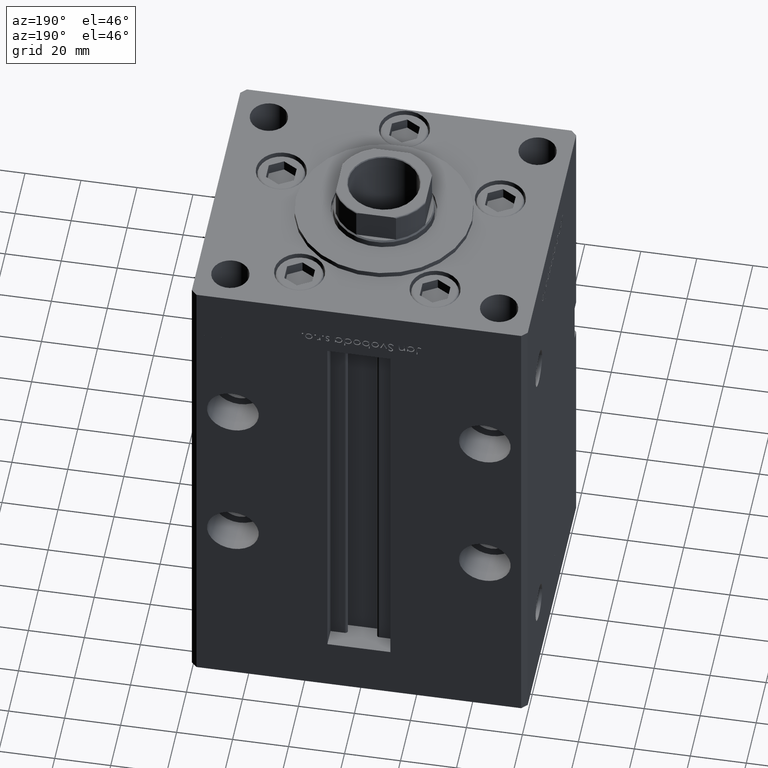
[diagram: clean part render]
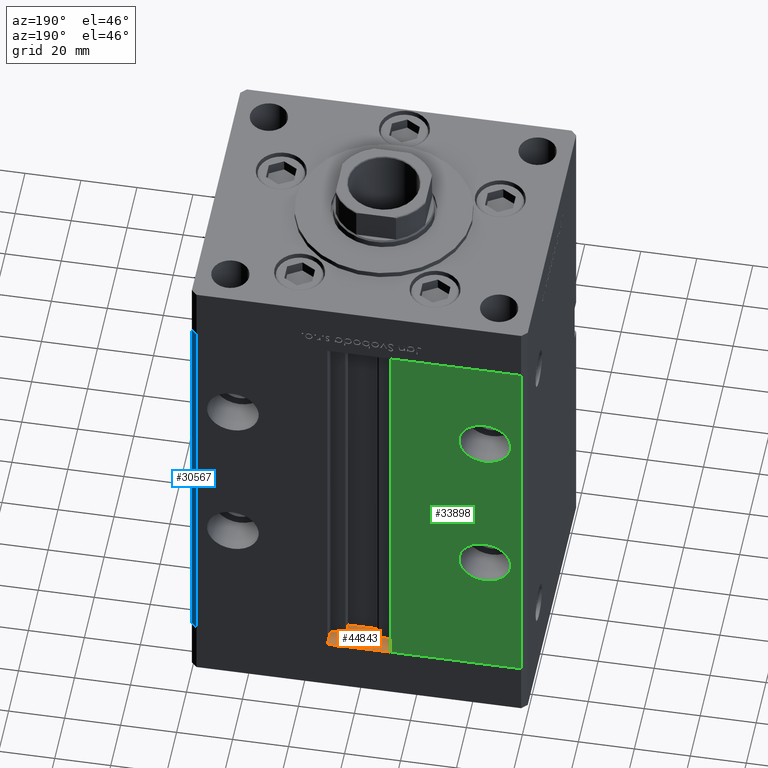
[diagram: same view with three faces highlighted in distinct colors, each labeled with its STEP entity id]
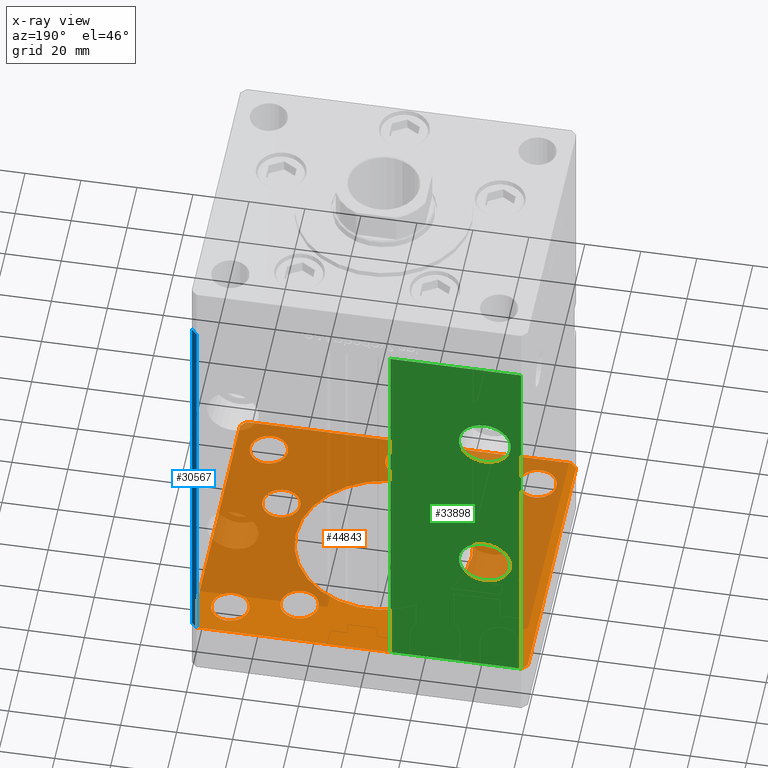
[diagram: x-ray of the same camera — body ghosted, the three highlighted faces saturated]
A machine part, auxiliary view with three faces highlighted in distinct colors.
The next image is the same camera in x-ray (body ghosted, the three faces saturated) — at least one of them is partly hidden behind the body in this view.
Their STEP definitions:

[orange] entity #44843 — the highlighted planar face has unit normal (0, 0, -1).
#113 = AXIS2_PLACEMENT_3D ( 'NONE', #4527, #45582, #9354 ) ;
#206 = CARTESIAN_POINT ( 'NONE',  ( 39.12657522565562829, -13.83333333333332860, -20.00000000000000000 ) ) ;
#509 = CARTESIAN_POINT ( 'NONE',  ( 48.00000000000000000, -38.99999999999999289, -20.00000000000000000 ) ) ;
#714 = DIRECTION ( 'NONE',  ( -1.000000000000000000, 0.000000000000000000, 0.000000000000000000 ) ) ;
#767 = CIRCLE ( 'NONE', #30714, 6.749999999999999112 ) ;
#917 = AXIS2_PLACEMENT_3D ( 'NONE', #206, #40977, #32646 ) ;
#1074 = VERTEX_POINT ( 'NONE', #9770 ) ;
#1345 = VERTEX_POINT ( 'NONE', #18262 ) ;
#2317 = CIRCLE ( 'NONE', #39153, 6.749999999999999112 ) ;
#2570 = CARTESIAN_POINT ( 'NONE',  ( 57.99999999999993605, 51.00000000000000711, -20.00000000000000000 ) ) ;
#2639 = VERTEX_POINT ( 'NONE', #17955 ) ;
#2806 = DIRECTION ( 'NONE',  ( -0.7071067811865487940, 0.7071067811865463515, 0.000000000000000000 ) ) ;
#2968 = FACE_BOUND ( 'NONE', #4332, .T. ) ;
#3303 = EDGE_LOOP ( 'NONE', ( #33275, #30427 ) ) ;
#3325 = CIRCLE ( 'NONE', #5059, 6.749999999999999112 ) ;
#3647 = VERTEX_POINT ( 'NONE', #16887 ) ;
#3874 = DIRECTION ( 'NONE',  ( 0.000000000000000000, -0.000000000000000000, -1.000000000000000000 ) ) ;
#3994 = EDGE_CURVE ( 'NONE', #8929, #12652, #7865, .T. ) ;
#4182 = EDGE_CURVE ( 'NONE', #47533, #34388, #30133, .T. ) ;
#4311 = CARTESIAN_POINT ( 'NONE',  ( -41.25000000000000000, -39.00000000000000000, -20.00000000000000000 ) ) ;
#4332 = EDGE_LOOP ( 'NONE', ( #49864, #34961 ) ) ;
#4366 = CARTESIAN_POINT ( 'NONE',  ( -24.19288941894912170, 33.71875000000000000, -20.00000000000000000 ) ) ;
#4415 = DIRECTION ( 'NONE',  ( 1.000000000000000000, 0.000000000000000000, 0.000000000000000000 ) ) ;
#4506 = CARTESIAN_POINT ( 'NONE',  ( 48.00000000000000000, 38.99999999999999289, -20.00000000000000000 ) ) ;
#4527 = CARTESIAN_POINT ( 'NONE',  ( -24.19288941894912170, 33.71875000000000000, -20.00000000000000000 ) ) ;
#4571 = DIRECTION ( 'NONE',  ( 0.000000000000000000, -0.000000000000000000, -1.000000000000000000 ) ) ;
#4684 = DIRECTION ( 'NONE',  ( 0.000000000000000000, -0.000000000000000000, -1.000000000000000000 ) ) ;
#4724 = DIRECTION ( 'NONE',  ( 1.000000000000000000, 0.000000000000000000, 0.000000000000000000 ) ) ;
#4732 = EDGE_CURVE ( 'NONE', #23922, #21215, #49593, .T. ) ;
#4733 = CARTESIAN_POINT ( 'NONE',  ( 59.99999999999994316, 49.00000000000000000, -20.00000000000000000 ) ) ;
#4773 = DIRECTION ( 'NONE',  ( 0.000000000000000000, -1.000000000000000000, 0.000000000000000000 ) ) ;
#4967 = VERTEX_POINT ( 'NONE', #11434 ) ;
#5059 = AXIS2_PLACEMENT_3D ( 'NONE', #37358, #8938, #12692 ) ;
#5108 = EDGE_CURVE ( 'NONE', #21215, #28339, #32601, .T. ) ;
#5632 = AXIS2_PLACEMENT_3D ( 'NONE', #36111, #52781, #4724 ) ;
#5889 = AXIS2_PLACEMENT_3D ( 'NONE', #29240, #4571, #49662 ) ;
#6088 = EDGE_CURVE ( 'NONE', #40906, #48078, #32654, .T. ) ;
#6653 = CIRCLE ( 'NONE', #19477, 31.50000000000000000 ) ;
#7056 = LINE ( 'NONE', #19116, #9046 ) ;
#7826 = EDGE_LOOP ( 'NONE', ( #12854, #9784 ) ) ;
#7865 = CIRCLE ( 'NONE', #21580, 6.749999999999999112 ) ;
#8017 = CARTESIAN_POINT ( 'NONE',  ( 24.19288941894911460, 33.71875000000000711, -20.00000000000000000 ) ) ;
#8165 = CARTESIAN_POINT ( 'NONE',  ( 24.19288941894911460, 33.71875000000000711, -20.00000000000000000 ) ) ;
#8669 = DIRECTION ( 'NONE',  ( -7.080503983578803823E-16, 1.000000000000000000, 0.000000000000000000 ) ) ;
#8712 = CARTESIAN_POINT ( 'NONE',  ( 5.082284216461515748E-15, -41.50000000000000000, -20.00000000000000000 ) ) ;
#8929 = VERTEX_POINT ( 'NONE', #46738 ) ;
#8938 = DIRECTION ( 'NONE',  ( 0.000000000000000000, -0.000000000000000000, -1.000000000000000000 ) ) ;
#9002 = DIRECTION ( 'NONE',  ( 0.7071067811865474617, 0.7071067811865474617, 0.000000000000000000 ) ) ;
#9046 = VECTOR ( 'NONE', #52675, 1000.000000000000114 ) ;
#9308 = CIRCLE ( 'NONE', #16153, 6.749999999999999112 ) ;
#9354 = DIRECTION ( 'NONE',  ( 1.000000000000000000, 0.000000000000000000, 0.000000000000000000 ) ) ;
#9698 = EDGE_CURVE ( 'NONE', #3647, #39657, #49094, .T. ) ;
#9770 = CARTESIAN_POINT ( 'NONE',  ( -57.99999999999999289, 50.99999999999997868, -20.00000000000000000 ) ) ;
#9784 = ORIENTED_EDGE ( 'NONE', *, *, #27798, .F. ) ;
#10663 = EDGE_CURVE ( 'NONE', #12652, #8929, #12258, .T. ) ;
#11092 = DIRECTION ( 'NONE',  ( 0.000000000000000000, 0.000000000000000000, 1.000000000000000000 ) ) ;
#11434 = CARTESIAN_POINT ( 'NONE',  ( -31.50000000000000000, 3.857637417314161900E-15, -20.00000000000000000 ) ) ;
#11825 = PLANE ( 'NONE',  #36664 ) ;
#11879 = EDGE_CURVE ( 'NONE', #33465, #41792, #40560, .T. ) ;
#11966 = EDGE_LOOP ( 'NONE', ( #13756, #31860 ) ) ;
#12258 = CIRCLE ( 'NONE', #27696, 6.749999999999999112 ) ;
#12358 = VERTEX_POINT ( 'NONE', #34663 ) ;
#12652 = VERTEX_POINT ( 'NONE', #35130 ) ;
#12674 = AXIS2_PLACEMENT_3D ( 'NONE', #8165, #3874, #33088 ) ;
#12685 = DIRECTION ( 'NONE',  ( -1.000000000000000000, 0.000000000000000000, 0.000000000000000000 ) ) ;
#12692 = DIRECTION ( 'NONE',  ( 1.000000000000000000, 0.000000000000000000, 0.000000000000000000 ) ) ;
#12791 = DIRECTION ( 'NONE',  ( -0.000000000000000000, -0.000000000000000000, -1.000000000000000000 ) ) ;
#12800 = CARTESIAN_POINT ( 'NONE',  ( -6.749999999999993783, -41.50000000000000000, -20.00000000000000000 ) ) ;
#12854 = ORIENTED_EDGE ( 'NONE', *, *, #35529, .F. ) ;
#12938 = CIRCLE ( 'NONE', #113, 6.749999999999999112 ) ;
#13317 = CARTESIAN_POINT ( 'NONE',  ( 48.00000000000000000, -38.99999999999999289, -20.00000000000000000 ) ) ;
#13756 = ORIENTED_EDGE ( 'NONE', *, *, #26577, .F. ) ;
#14206 = CARTESIAN_POINT ( 'NONE',  ( -48.00000000000000000, 39.00000000000000000, -20.00000000000000000 ) ) ;
#14773 = AXIS2_PLACEMENT_3D ( 'NONE', #37566, #41595, #21739 ) ;
#14876 = VERTEX_POINT ( 'NONE', #49277 ) ;
#15441 = CARTESIAN_POINT ( 'NONE',  ( -54.75000000000000000, -39.00000000000000000, -20.00000000000000000 ) ) ;
#15688 = EDGE_CURVE ( 'NONE', #12358, #2639, #26990, .T. ) ;
#15720 = DIRECTION ( 'NONE',  ( 1.000000000000000000, 0.000000000000000000, 0.000000000000000000 ) ) ;
#15722 = CARTESIAN_POINT ( 'NONE',  ( 54.75000000000000000, -38.99999999999999289, -20.00000000000000000 ) ) ;
#15987 = EDGE_CURVE ( 'NONE', #53034, #40736, #48169, .T. ) ;
#16153 = AXIS2_PLACEMENT_3D ( 'NONE', #4506, #41260, #20596 ) ;
#16590 = DIRECTION ( 'NONE',  ( -0.000000000000000000, -0.000000000000000000, -1.000000000000000000 ) ) ;
#16887 = CARTESIAN_POINT ( 'NONE',  ( 6.750000000000004441, -41.50000000000000000, -20.00000000000000000 ) ) ;
#17276 = EDGE_CURVE ( 'NONE', #1074, #39306, #7056, .T. ) ;
#17534 = CARTESIAN_POINT ( 'NONE',  ( 31.50000000000000000, 0.000000000000000000, -20.00000000000000000 ) ) ;
#17955 = CARTESIAN_POINT ( 'NONE',  ( 17.44288941894911460, 33.71875000000000711, -20.00000000000000000 ) ) ;
#18016 = AXIS2_PLACEMENT_3D ( 'NONE', #22173, #22433, #38521 ) ;
#18262 = CARTESIAN_POINT ( 'NONE',  ( -60.00000000000000000, -49.00000000000000000, -20.00000000000000000 ) ) ;
#18503 = EDGE_LOOP ( 'NONE', ( #30483, #50798, #49157, #27988, #37436, #52698, #47415, #49215 ) ) ;
#18903 = DIRECTION ( 'NONE',  ( -0.000000000000000000, -0.000000000000000000, -1.000000000000000000 ) ) ;
#19116 = CARTESIAN_POINT ( 'NONE',  ( -57.99999999999999289, 50.99999999999997868, -20.00000000000000000 ) ) ;
#19320 = FACE_BOUND ( 'NONE', #3303, .T. ) ;
#19477 = AXIS2_PLACEMENT_3D ( 'NONE', #31885, #27346, #45515 ) ;
#19879 = ORIENTED_EDGE ( 'NONE', *, *, #31040, .F. ) ;
#20146 = LINE ( 'NONE', #52904, #29018 ) ;
#20596 = DIRECTION ( 'NONE',  ( 1.000000000000000000, 0.000000000000000000, 0.000000000000000000 ) ) ;
#21215 = VERTEX_POINT ( 'NONE', #46602 ) ;
#21329 = CIRCLE ( 'NONE', #5889, 6.749999999999999112 ) ;
#21408 = ORIENTED_EDGE ( 'NONE', *, *, #6088, .F. ) ;
#21495 = ORIENTED_EDGE ( 'NONE', *, *, #3994, .T. ) ;
#21570 = CARTESIAN_POINT ( 'NONE',  ( -32.37657522565562829, -13.83333333333333925, -20.00000000000000000 ) ) ;
#21580 = AXIS2_PLACEMENT_3D ( 'NONE', #42822, #11092, #29951 ) ;
#21739 = DIRECTION ( 'NONE',  ( 1.000000000000000000, 0.000000000000000000, 0.000000000000000000 ) ) ;
#21921 = EDGE_CURVE ( 'NONE', #39306, #1345, #46612, .T. ) ;
#22173 = CARTESIAN_POINT ( 'NONE',  ( 0.000000000000000000, 0.000000000000000000, -20.00000000000000000 ) ) ;
#22277 = CIRCLE ( 'NONE', #39374, 6.749999999999999112 ) ;
#22433 = DIRECTION ( 'NONE',  ( 0.000000000000000000, -0.000000000000000000, -1.000000000000000000 ) ) ;
#22531 = DIRECTION ( 'NONE',  ( 1.000000000000000000, 0.000000000000000000, 0.000000000000000000 ) ) ;
#22693 = EDGE_CURVE ( 'NONE', #26607, #23840, #45047, .T. ) ;
#22724 = ORIENTED_EDGE ( 'NONE', *, *, #10663, .T. ) ;
#22802 = ORIENTED_EDGE ( 'NONE', *, *, #51555, .F. ) ;
#23365 = FACE_BOUND ( 'NONE', #7826, .T. ) ;
#23594 = DIRECTION ( 'NONE',  ( 0.000000000000000000, -0.000000000000000000, -1.000000000000000000 ) ) ;
#23634 = EDGE_CURVE ( 'NONE', #48078, #40906, #50227, .T. ) ;
#23811 = CARTESIAN_POINT ( 'NONE',  ( -30.94288941894911815, 33.71875000000000000, -20.00000000000000000 ) ) ;
#23840 = VERTEX_POINT ( 'NONE', #21570 ) ;
#23922 = VERTEX_POINT ( 'NONE', #38440 ) ;
#24392 = DIRECTION ( 'NONE',  ( 1.000000000000000000, 0.000000000000000000, 0.000000000000000000 ) ) ;
#24776 = VECTOR ( 'NONE', #8669, 1000.000000000000000 ) ;
#25031 = LINE ( 'NONE', #44898, #24776 ) ;
#25155 = CARTESIAN_POINT ( 'NONE',  ( -57.99999999999997868, -51.00000000000001421, -20.00000000000000000 ) ) ;
#25825 = CARTESIAN_POINT ( 'NONE',  ( -48.00000000000000000, -39.00000000000000000, -20.00000000000000000 ) ) ;
#26052 = ORIENTED_EDGE ( 'NONE', *, *, #22693, .F. ) ;
#26188 = VECTOR ( 'NONE', #4773, 1000.000000000000000 ) ;
#26577 = EDGE_CURVE ( 'NONE', #41792, #33465, #2317, .T. ) ;
#26607 = VERTEX_POINT ( 'NONE', #26969 ) ;
#26969 = CARTESIAN_POINT ( 'NONE',  ( -45.87657522565562829, -13.83333333333333925, -20.00000000000000000 ) ) ;
#26990 = CIRCLE ( 'NONE', #52731, 6.749999999999999112 ) ;
#27067 = AXIS2_PLACEMENT_3D ( 'NONE', #47097, #18903, #29467 ) ;
#27209 = ORIENTED_EDGE ( 'NONE', *, *, #15688, .F. ) ;
#27346 = DIRECTION ( 'NONE',  ( 0.000000000000000000, -0.000000000000000000, -1.000000000000000000 ) ) ;
#27443 = CIRCLE ( 'NONE', #18016, 31.50000000000000000 ) ;
#27530 = ORIENTED_EDGE ( 'NONE', *, *, #28115, .F. ) ;
#27696 = AXIS2_PLACEMENT_3D ( 'NONE', #14206, #38615, #22531 ) ;
#27798 = EDGE_CURVE ( 'NONE', #4967, #48997, #6653, .T. ) ;
#27988 = ORIENTED_EDGE ( 'NONE', *, *, #31280, .F. ) ;
#28115 = EDGE_CURVE ( 'NONE', #2639, #12358, #41821, .T. ) ;
#28180 = DIRECTION ( 'NONE',  ( 1.000000000000000000, 0.000000000000000000, 0.000000000000000000 ) ) ;
#28339 = VERTEX_POINT ( 'NONE', #50281 ) ;
#28415 = CARTESIAN_POINT ( 'NONE',  ( 41.25000000000000000, -38.99999999999999289, -20.00000000000000000 ) ) ;
#28440 = FACE_BOUND ( 'NONE', #37742, .T. ) ;
#29018 = VECTOR ( 'NONE', #44302, 1000.000000000000000 ) ;
#29041 = DIRECTION ( 'NONE',  ( -0.000000000000000000, -0.000000000000000000, -1.000000000000000000 ) ) ;
#29240 = CARTESIAN_POINT ( 'NONE',  ( 39.12657522565562829, -13.83333333333332860, -20.00000000000000000 ) ) ;
#29451 = AXIS2_PLACEMENT_3D ( 'NONE', #509, #16590, #32944 ) ;
#29467 = DIRECTION ( 'NONE',  ( -1.000000000000000000, 0.000000000000000000, 0.000000000000000000 ) ) ;
#29951 = DIRECTION ( 'NONE',  ( 1.000000000000000000, 0.000000000000000000, 0.000000000000000000 ) ) ;
#30133 = CIRCLE ( 'NONE', #36994, 6.749999999999999112 ) ;
#30427 = ORIENTED_EDGE ( 'NONE', *, *, #31770, .T. ) ;
#30483 = ORIENTED_EDGE ( 'NONE', *, *, #41367, .F. ) ;
#30683 = VERTEX_POINT ( 'NONE', #43958 ) ;
#30714 = AXIS2_PLACEMENT_3D ( 'NONE', #36107, #31808, #15720 ) ;
#30731 = EDGE_CURVE ( 'NONE', #44592, #47463, #9308, .T. ) ;
#31040 = EDGE_CURVE ( 'NONE', #23840, #26607, #3325, .T. ) ;
#31280 = EDGE_CURVE ( 'NONE', #40736, #1074, #20146, .T. ) ;
#31770 = EDGE_CURVE ( 'NONE', #47463, #44592, #767, .T. ) ;
#31808 = DIRECTION ( 'NONE',  ( 0.000000000000000000, 0.000000000000000000, 1.000000000000000000 ) ) ;
#31860 = ORIENTED_EDGE ( 'NONE', *, *, #11879, .F. ) ;
#31885 = CARTESIAN_POINT ( 'NONE',  ( 0.000000000000000000, 0.000000000000000000, -20.00000000000000000 ) ) ;
#31919 = DIRECTION ( 'NONE',  ( -0.000000000000000000, 0.000000000000000000, 1.000000000000000000 ) ) ;
#32183 = CARTESIAN_POINT ( 'NONE',  ( -60.00000000000000000, 48.99999999999995737, -20.00000000000000000 ) ) ;
#32601 = LINE ( 'NONE', #41197, #41217 ) ;
#32646 = DIRECTION ( 'NONE',  ( 1.000000000000000000, 0.000000000000000000, 0.000000000000000000 ) ) ;
#32654 = CIRCLE ( 'NONE', #45518, 6.749999999999999112 ) ;
#32944 = DIRECTION ( 'NONE',  ( -1.000000000000000000, 0.000000000000000000, 0.000000000000000000 ) ) ;
#33088 = DIRECTION ( 'NONE',  ( 1.000000000000000000, 0.000000000000000000, 0.000000000000000000 ) ) ;
#33275 = ORIENTED_EDGE ( 'NONE', *, *, #30731, .T. ) ;
#33465 = VERTEX_POINT ( 'NONE', #28415 ) ;
#33977 = DIRECTION ( 'NONE',  ( 1.000000000000000000, 1.196361017915039486E-16, 0.000000000000000000 ) ) ;
#34388 = VERTEX_POINT ( 'NONE', #23811 ) ;
#34663 = CARTESIAN_POINT ( 'NONE',  ( 30.94288941894911105, 33.71875000000000711, -20.00000000000000000 ) ) ;
#34961 = ORIENTED_EDGE ( 'NONE', *, *, #52191, .F. ) ;
#35130 = CARTESIAN_POINT ( 'NONE',  ( -41.25000000000000000, 39.00000000000000000, -20.00000000000000000 ) ) ;
#35523 = VECTOR ( 'NONE', #2806, 1000.000000000000000 ) ;
#35529 = EDGE_CURVE ( 'NONE', #48997, #4967, #27443, .T. ) ;
#35553 = CARTESIAN_POINT ( 'NONE',  ( -17.44288941894912170, 33.71875000000000000, -20.00000000000000000 ) ) ;
#35555 = EDGE_LOOP ( 'NONE', ( #19879, #26052 ) ) ;
#35682 = FACE_BOUND ( 'NONE', #11966, .T. ) ;
#35823 = CARTESIAN_POINT ( 'NONE',  ( 41.25000000000000000, 38.99999999999999289, -20.00000000000000000 ) ) ;
#35950 = FACE_BOUND ( 'NONE', #47398, .T. ) ;
#36107 = CARTESIAN_POINT ( 'NONE',  ( 48.00000000000000000, 38.99999999999999289, -20.00000000000000000 ) ) ;
#36111 = CARTESIAN_POINT ( 'NONE',  ( -39.12657522565562829, -13.83333333333333925, -20.00000000000000000 ) ) ;
#36216 = FACE_BOUND ( 'NONE', #44601, .T. ) ;
#36240 = LINE ( 'NONE', #46689, #51203 ) ;
#36664 = AXIS2_PLACEMENT_3D ( 'NONE', #52080, #31919, #28180 ) ;
#36994 = AXIS2_PLACEMENT_3D ( 'NONE', #4366, #37081, #40851 ) ;
#37081 = DIRECTION ( 'NONE',  ( 0.000000000000000000, -0.000000000000000000, -1.000000000000000000 ) ) ;
#37358 = CARTESIAN_POINT ( 'NONE',  ( -39.12657522565562829, -13.83333333333333925, -20.00000000000000000 ) ) ;
#37436 = ORIENTED_EDGE ( 'NONE', *, *, #15987, .F. ) ;
#37566 = CARTESIAN_POINT ( 'NONE',  ( 5.082284216461515748E-15, -41.50000000000000000, -20.00000000000000000 ) ) ;
#37742 = EDGE_LOOP ( 'NONE', ( #22724, #21495 ) ) ;
#38017 = EDGE_LOOP ( 'NONE', ( #49419, #21408 ) ) ;
#38440 = CARTESIAN_POINT ( 'NONE',  ( -57.99999999999997868, -51.00000000000001421, -20.00000000000000000 ) ) ;
#38521 = DIRECTION ( 'NONE',  ( 1.000000000000000000, 0.000000000000000000, 0.000000000000000000 ) ) ;
#38615 = DIRECTION ( 'NONE',  ( 0.000000000000000000, 0.000000000000000000, 1.000000000000000000 ) ) ;
#39153 = AXIS2_PLACEMENT_3D ( 'NONE', #13317, #12791, #714 ) ;
#39306 = VERTEX_POINT ( 'NONE', #32183 ) ;
#39374 = AXIS2_PLACEMENT_3D ( 'NONE', #8712, #4684, #4415 ) ;
#39657 = VERTEX_POINT ( 'NONE', #12800 ) ;
#39702 = FACE_BOUND ( 'NONE', #35555, .T. ) ;
#40560 = CIRCLE ( 'NONE', #29451, 6.749999999999999112 ) ;
#40736 = VERTEX_POINT ( 'NONE', #2570 ) ;
#40851 = DIRECTION ( 'NONE',  ( 1.000000000000000000, 0.000000000000000000, 0.000000000000000000 ) ) ;
#40906 = VERTEX_POINT ( 'NONE', #15441 ) ;
#40977 = DIRECTION ( 'NONE',  ( 0.000000000000000000, -0.000000000000000000, -1.000000000000000000 ) ) ;
#41197 = CARTESIAN_POINT ( 'NONE',  ( 58.00000000000000000, -51.00000000000000711, -20.00000000000000000 ) ) ;
#41217 = VECTOR ( 'NONE', #9002, 1000.000000000000114 ) ;
#41260 = DIRECTION ( 'NONE',  ( 0.000000000000000000, 0.000000000000000000, 1.000000000000000000 ) ) ;
#41367 = EDGE_CURVE ( 'NONE', #1345, #23922, #36240, .T. ) ;
#41595 = DIRECTION ( 'NONE',  ( 0.000000000000000000, -0.000000000000000000, -1.000000000000000000 ) ) ;
#41792 = VERTEX_POINT ( 'NONE', #15722 ) ;
#41821 = CIRCLE ( 'NONE', #12674, 6.749999999999999112 ) ;
#42572 = CARTESIAN_POINT ( 'NONE',  ( -60.00000000000000000, 48.99999999999995737, -20.00000000000000000 ) ) ;
#42822 = CARTESIAN_POINT ( 'NONE',  ( -48.00000000000000000, 39.00000000000000000, -20.00000000000000000 ) ) ;
#43958 = CARTESIAN_POINT ( 'NONE',  ( 32.37657522565562829, -13.83333333333332860, -20.00000000000000000 ) ) ;
#44302 = DIRECTION ( 'NONE',  ( -1.000000000000000000, -2.392722035830079958E-16, 0.000000000000000000 ) ) ;
#44354 = CARTESIAN_POINT ( 'NONE',  ( 54.75000000000000000, 38.99999999999999289, -20.00000000000000000 ) ) ;
#44592 = VERTEX_POINT ( 'NONE', #44354 ) ;
#44601 = EDGE_LOOP ( 'NONE', ( #45768, #46283 ) ) ;
#44819 = FACE_OUTER_BOUND ( 'NONE', #18503, .T. ) ;
#44843 = ADVANCED_FACE ( 'NONE', ( #23365, #39702, #36216, #35950, #52350, #2968, #19320, #28440, #44819, #35682, #48600 ), #11825, .F. ) ;
#44898 = CARTESIAN_POINT ( 'NONE',  ( 60.00000000000001421, -48.99999999999999289, -20.00000000000000000 ) ) ;
#45047 = CIRCLE ( 'NONE', #5632, 6.749999999999999112 ) ;
#45515 = DIRECTION ( 'NONE',  ( 1.000000000000000000, 0.000000000000000000, 0.000000000000000000 ) ) ;
#45518 = AXIS2_PLACEMENT_3D ( 'NONE', #25825, #29041, #12685 ) ;
#45582 = DIRECTION ( 'NONE',  ( 0.000000000000000000, -0.000000000000000000, -1.000000000000000000 ) ) ;
#45622 = EDGE_CURVE ( 'NONE', #30683, #14876, #21329, .T. ) ;
#45768 = ORIENTED_EDGE ( 'NONE', *, *, #9698, .F. ) ;
#46283 = ORIENTED_EDGE ( 'NONE', *, *, #49820, .F. ) ;
#46602 = CARTESIAN_POINT ( 'NONE',  ( 58.00000000000000000, -51.00000000000000711, -20.00000000000000000 ) ) ;
#46612 = LINE ( 'NONE', #42572, #26188 ) ;
#46689 = CARTESIAN_POINT ( 'NONE',  ( -60.00000000000000000, -49.00000000000000000, -20.00000000000000000 ) ) ;
#46738 = CARTESIAN_POINT ( 'NONE',  ( -54.75000000000000000, 39.00000000000000000, -20.00000000000000000 ) ) ;
#46819 = EDGE_LOOP ( 'NONE', ( #27209, #27530 ) ) ;
#47097 = CARTESIAN_POINT ( 'NONE',  ( -48.00000000000000000, -39.00000000000000000, -20.00000000000000000 ) ) ;
#47327 = VECTOR ( 'NONE', #33977, 1000.000000000000000 ) ;
#47398 = EDGE_LOOP ( 'NONE', ( #22802, #48850 ) ) ;
#47415 = ORIENTED_EDGE ( 'NONE', *, *, #5108, .F. ) ;
#47463 = VERTEX_POINT ( 'NONE', #35823 ) ;
#47533 = VERTEX_POINT ( 'NONE', #35553 ) ;
#47814 = EDGE_CURVE ( 'NONE', #28339, #53034, #25031, .T. ) ;
#48078 = VERTEX_POINT ( 'NONE', #4311 ) ;
#48169 = LINE ( 'NONE', #50667, #35523 ) ;
#48600 = FACE_BOUND ( 'NONE', #38017, .T. ) ;
#48850 = ORIENTED_EDGE ( 'NONE', *, *, #45622, .F. ) ;
#48997 = VERTEX_POINT ( 'NONE', #17534 ) ;
#49094 = CIRCLE ( 'NONE', #14773, 6.749999999999999112 ) ;
#49157 = ORIENTED_EDGE ( 'NONE', *, *, #17276, .F. ) ;
#49215 = ORIENTED_EDGE ( 'NONE', *, *, #4732, .F. ) ;
#49277 = CARTESIAN_POINT ( 'NONE',  ( 45.87657522565562829, -13.83333333333332860, -20.00000000000000000 ) ) ;
#49419 = ORIENTED_EDGE ( 'NONE', *, *, #23634, .F. ) ;
#49593 = LINE ( 'NONE', #25155, #47327 ) ;
#49662 = DIRECTION ( 'NONE',  ( 1.000000000000000000, 0.000000000000000000, 0.000000000000000000 ) ) ;
#49675 = DIRECTION ( 'NONE',  ( 0.7071067811865474617, -0.7071067811865474617, 0.000000000000000000 ) ) ;
#49820 = EDGE_CURVE ( 'NONE', #39657, #3647, #22277, .T. ) ;
#49864 = ORIENTED_EDGE ( 'NONE', *, *, #4182, .F. ) ;
#50227 = CIRCLE ( 'NONE', #27067, 6.749999999999999112 ) ;
#50281 = CARTESIAN_POINT ( 'NONE',  ( 60.00000000000001421, -48.99999999999999289, -20.00000000000000000 ) ) ;
#50667 = CARTESIAN_POINT ( 'NONE',  ( 59.99999999999994316, 49.00000000000000000, -20.00000000000000000 ) ) ;
#50798 = ORIENTED_EDGE ( 'NONE', *, *, #21921, .F. ) ;
#51203 = VECTOR ( 'NONE', #49675, 1000.000000000000114 ) ;
#51464 = CIRCLE ( 'NONE', #917, 6.749999999999999112 ) ;
#51555 = EDGE_CURVE ( 'NONE', #14876, #30683, #51464, .T. ) ;
#52080 = CARTESIAN_POINT ( 'NONE',  ( 0.000000000000000000, 0.000000000000000000, -20.00000000000000000 ) ) ;
#52191 = EDGE_CURVE ( 'NONE', #34388, #47533, #12938, .T. ) ;
#52350 = FACE_BOUND ( 'NONE', #46819, .T. ) ;
#52675 = DIRECTION ( 'NONE',  ( -0.7071067811865451302, -0.7071067811865500152, 0.000000000000000000 ) ) ;
#52698 = ORIENTED_EDGE ( 'NONE', *, *, #47814, .F. ) ;
#52731 = AXIS2_PLACEMENT_3D ( 'NONE', #8017, #23594, #24392 ) ;
#52781 = DIRECTION ( 'NONE',  ( 0.000000000000000000, -0.000000000000000000, -1.000000000000000000 ) ) ;
#52904 = CARTESIAN_POINT ( 'NONE',  ( 57.99999999999993605, 51.00000000000000711, -20.00000000000000000 ) ) ;
#53034 = VERTEX_POINT ( 'NONE', #4733 ) ;

[blue] entity #30567 — the highlighted planar face has unit normal (0.7071, 0.7071, 0).
#715 = VECTOR ( 'NONE', #18859, 1000.000000000000114 ) ;
#2996 = VERTEX_POINT ( 'NONE', #50553 ) ;
#3574 = VECTOR ( 'NONE', #4446, 1000.000000000000114 ) ;
#4446 = DIRECTION ( 'NONE',  ( 0.7071067811865500152, -0.7071067811865451302, 0.000000000000000000 ) ) ;
#6736 = AXIS2_PLACEMENT_3D ( 'NONE', #17954, #39391, #42378 ) ;
#6796 = EDGE_CURVE ( 'NONE', #2996, #36367, #24838, .T. ) ;
#9792 = ORIENTED_EDGE ( 'NONE', *, *, #44472, .F. ) ;
#10383 = ORIENTED_EDGE ( 'NONE', *, *, #18276, .F. ) ;
#10698 = PLANE ( 'NONE',  #6736 ) ;
#14140 = EDGE_LOOP ( 'NONE', ( #9792, #10383, #22918, #38357 ) ) ;
#17954 = CARTESIAN_POINT ( 'NONE',  ( 57.99999999999999289, 51.00000000000000711, 148.5000000000000000 ) ) ;
#18276 = EDGE_CURVE ( 'NONE', #2996, #46034, #24291, .T. ) ;
#18859 = DIRECTION ( 'NONE',  ( 0.7071067811865500152, -0.7071067811865451302, 0.000000000000000000 ) ) ;
#22106 = LINE ( 'NONE', #38716, #715 ) ;
#22918 = ORIENTED_EDGE ( 'NONE', *, *, #6796, .T. ) ;
#23047 = FACE_OUTER_BOUND ( 'NONE', #14140, .T. ) ;
#23945 = VERTEX_POINT ( 'NONE', #50285 ) ;
#24291 = LINE ( 'NONE', #40372, #51907 ) ;
#24838 = LINE ( 'NONE', #44967, #3574 ) ;
#30567 = ADVANCED_FACE ( 'NONE', ( #23047 ), #10698, .T. ) ;
#36367 = VERTEX_POINT ( 'NONE', #40393 ) ;
#38357 = ORIENTED_EDGE ( 'NONE', *, *, #46177, .T. ) ;
#38716 = CARTESIAN_POINT ( 'NONE',  ( 57.99999999999999289, 51.00000000000000711, 0.000000000000000000 ) ) ;
#39391 = DIRECTION ( 'NONE',  ( 0.7071067811865451302, 0.7071067811865499042, -0.000000000000000000 ) ) ;
#40372 = CARTESIAN_POINT ( 'NONE',  ( 57.99999999999999289, 51.00000000000000711, 148.5000000000000000 ) ) ;
#40393 = CARTESIAN_POINT ( 'NONE',  ( 60.00000000000001421, 49.00000000000000000, 148.5000000000000000 ) ) ;
#42378 = DIRECTION ( 'NONE',  ( -0.7071067811865499042, 0.7071067811865451302, 0.000000000000000000 ) ) ;
#43571 = VECTOR ( 'NONE', #47187, 1000.000000000000000 ) ;
#43676 = CARTESIAN_POINT ( 'NONE',  ( 60.00000000000001421, 49.00000000000000000, 148.5000000000000000 ) ) ;
#44472 = EDGE_CURVE ( 'NONE', #46034, #23945, #22106, .T. ) ;
#44967 = CARTESIAN_POINT ( 'NONE',  ( 57.99999999999999289, 51.00000000000000711, 148.5000000000000000 ) ) ;
#46034 = VERTEX_POINT ( 'NONE', #52768 ) ;
#46177 = EDGE_CURVE ( 'NONE', #36367, #23945, #51743, .T. ) ;
#47187 = DIRECTION ( 'NONE',  ( -0.000000000000000000, -0.000000000000000000, -1.000000000000000000 ) ) ;
#49251 = DIRECTION ( 'NONE',  ( -0.000000000000000000, -0.000000000000000000, -1.000000000000000000 ) ) ;
#50285 = CARTESIAN_POINT ( 'NONE',  ( 60.00000000000001421, 49.00000000000000000, 0.000000000000000000 ) ) ;
#50553 = CARTESIAN_POINT ( 'NONE',  ( 57.99999999999999289, 51.00000000000000711, 148.5000000000000000 ) ) ;
#51743 = LINE ( 'NONE', #43676, #43571 ) ;
#51907 = VECTOR ( 'NONE', #49251, 1000.000000000000000 ) ;
#52768 = CARTESIAN_POINT ( 'NONE',  ( 57.99999999999999289, 51.00000000000000711, 0.000000000000000000 ) ) ;

[green] entity #33898 — the highlighted planar face has unit normal (0, -1, 0).
#628 = DIRECTION ( 'NONE',  ( 0.000000000000000000, 0.000000000000000000, -1.000000000000000000 ) ) ;
#1536 = CARTESIAN_POINT ( 'NONE',  ( -45.00000000000000000, 51.00000000000000711, 51.50000000000000000 ) ) ;
#2198 = DIRECTION ( 'NONE',  ( -0.000000000000000000, -0.000000000000000000, 1.000000000000000000 ) ) ;
#4653 = CARTESIAN_POINT ( 'NONE',  ( -45.00000000000000000, 51.00000000000000711, 111.5000000000000000 ) ) ;
#4849 = EDGE_CURVE ( 'NONE', #6550, #27654, #35297, .T. ) ;
#6074 = CARTESIAN_POINT ( 'NONE',  ( -11.24999999999999822, 51.00000000000000711, 0.000000000000000000 ) ) ;
#6550 = VERTEX_POINT ( 'NONE', #31799 ) ;
#6615 = VECTOR ( 'NONE', #2198, 1000.000000000000000 ) ;
#6949 = AXIS2_PLACEMENT_3D ( 'NONE', #20702, #19645, #31968 ) ;
#7278 = ORIENTED_EDGE ( 'NONE', *, *, #43864, .F. ) ;
#7338 = ORIENTED_EDGE ( 'NONE', *, *, #37914, .F. ) ;
#7353 = AXIS2_PLACEMENT_3D ( 'NONE', #4653, #21015, #628 ) ;
#7516 = CARTESIAN_POINT ( 'NONE',  ( -11.24999999999999822, 51.00000000000000711, 0.000000000000000000 ) ) ;
#10171 = EDGE_CURVE ( 'NONE', #38147, #13424, #32769, .T. ) ;
#10263 = LINE ( 'NONE', #21554, #6615 ) ;
#10563 = EDGE_LOOP ( 'NONE', ( #7278, #32340 ) ) ;
#10753 = CIRCLE ( 'NONE', #7353, 9.249999999999994671 ) ;
#10979 = AXIS2_PLACEMENT_3D ( 'NONE', #51875, #52142, #11077 ) ;
#11077 = DIRECTION ( 'NONE',  ( 0.000000000000000000, 0.000000000000000000, 1.000000000000000000 ) ) ;
#12516 = VECTOR ( 'NONE', #47125, 1000.000000000000000 ) ;
#13424 = VERTEX_POINT ( 'NONE', #24022 ) ;
#13682 = VERTEX_POINT ( 'NONE', #7516 ) ;
#15977 = CARTESIAN_POINT ( 'NONE',  ( -11.24999999999999822, 51.00000000000000711, 148.5000000000000000 ) ) ;
#18136 = LINE ( 'NONE', #6074, #52205 ) ;
#18406 = DIRECTION ( 'NONE',  ( 0.000000000000000000, 1.000000000000000000, 0.000000000000000000 ) ) ;
#18910 = AXIS2_PLACEMENT_3D ( 'NONE', #1536, #18406, #51696 ) ;
#19065 = EDGE_CURVE ( 'NONE', #30488, #20889, #19457, .T. ) ;
#19344 = ORIENTED_EDGE ( 'NONE', *, *, #10171, .F. ) ;
#19457 = LINE ( 'NONE', #31518, #12516 ) ;
#19645 = DIRECTION ( 'NONE',  ( 0.000000000000000000, -1.000000000000000000, 0.000000000000000000 ) ) ;
#19753 = DIRECTION ( 'NONE',  ( 0.000000000000000000, 0.000000000000000000, -1.000000000000000000 ) ) ;
#20665 = CARTESIAN_POINT ( 'NONE',  ( -57.99999999999999289, 51.00000000000000711, 148.5000000000000000 ) ) ;
#20702 = CARTESIAN_POINT ( 'NONE',  ( -11.24999999999999822, 51.00000000000000711, 148.5000000000000000 ) ) ;
#20889 = VERTEX_POINT ( 'NONE', #40515 ) ;
#21015 = DIRECTION ( 'NONE',  ( 0.000000000000000000, 1.000000000000000000, -0.000000000000000000 ) ) ;
#21554 = CARTESIAN_POINT ( 'NONE',  ( -11.24999999999999822, 51.00000000000000711, 0.000000000000000000 ) ) ;
#22246 = EDGE_CURVE ( 'NONE', #13424, #38147, #10753, .T. ) ;
#23830 = CARTESIAN_POINT ( 'NONE',  ( -45.00000000000000000, 51.00000000000000711, 120.7500000000000000 ) ) ;
#23907 = DIRECTION ( 'NONE',  ( 1.000000000000000000, 0.000000000000000000, 0.000000000000000000 ) ) ;
#24022 = CARTESIAN_POINT ( 'NONE',  ( -45.00000000000000000, 51.00000000000000711, 102.2500000000000142 ) ) ;
#24434 = CARTESIAN_POINT ( 'NONE',  ( -11.24999999999999822, 51.00000000000000711, 148.5000000000000000 ) ) ;
#24584 = VECTOR ( 'NONE', #23907, 1000.000000000000000 ) ;
#27654 = VERTEX_POINT ( 'NONE', #37841 ) ;
#27934 = EDGE_LOOP ( 'NONE', ( #36848, #7338, #34791, #31421 ) ) ;
#30488 = VERTEX_POINT ( 'NONE', #20665 ) ;
#31421 = ORIENTED_EDGE ( 'NONE', *, *, #19065, .F. ) ;
#31518 = CARTESIAN_POINT ( 'NONE',  ( -57.99999999999999289, 51.00000000000000711, 148.5000000000000000 ) ) ;
#31799 = CARTESIAN_POINT ( 'NONE',  ( -45.00000000000000000, 51.00000000000000711, 42.24999999999999289 ) ) ;
#31950 = ORIENTED_EDGE ( 'NONE', *, *, #22246, .F. ) ;
#31968 = DIRECTION ( 'NONE',  ( 0.000000000000000000, -0.000000000000000000, -1.000000000000000000 ) ) ;
#32239 = PLANE ( 'NONE',  #6949 ) ;
#32340 = ORIENTED_EDGE ( 'NONE', *, *, #4849, .F. ) ;
#32499 = FACE_BOUND ( 'NONE', #44719, .T. ) ;
#32769 = CIRCLE ( 'NONE', #38779, 9.249999999999994671 ) ;
#33898 = ADVANCED_FACE ( 'NONE', ( #32499, #45130, #41104 ), #32239, .F. ) ;
#34750 = DIRECTION ( 'NONE',  ( -1.000000000000000000, 0.000000000000000000, 0.000000000000000000 ) ) ;
#34791 = ORIENTED_EDGE ( 'NONE', *, *, #47264, .T. ) ;
#35297 = CIRCLE ( 'NONE', #18910, 9.250000000000001776 ) ;
#35688 = LINE ( 'NONE', #24434, #24584 ) ;
#35898 = EDGE_CURVE ( 'NONE', #30488, #36426, #35688, .T. ) ;
#36426 = VERTEX_POINT ( 'NONE', #15977 ) ;
#36848 = ORIENTED_EDGE ( 'NONE', *, *, #35898, .T. ) ;
#37841 = CARTESIAN_POINT ( 'NONE',  ( -45.00000000000000000, 51.00000000000000711, 60.75000000000000000 ) ) ;
#37914 = EDGE_CURVE ( 'NONE', #13682, #36426, #10263, .T. ) ;
#38147 = VERTEX_POINT ( 'NONE', #23830 ) ;
#38779 = AXIS2_PLACEMENT_3D ( 'NONE', #52776, #48223, #19753 ) ;
#40515 = CARTESIAN_POINT ( 'NONE',  ( -57.99999999999999289, 51.00000000000000711, 0.000000000000000000 ) ) ;
#41104 = FACE_OUTER_BOUND ( 'NONE', #27934, .T. ) ;
#43864 = EDGE_CURVE ( 'NONE', #27654, #6550, #46989, .T. ) ;
#44719 = EDGE_LOOP ( 'NONE', ( #19344, #31950 ) ) ;
#45130 = FACE_BOUND ( 'NONE', #10563, .T. ) ;
#46989 = CIRCLE ( 'NONE', #10979, 9.250000000000001776 ) ;
#47125 = DIRECTION ( 'NONE',  ( -0.000000000000000000, -0.000000000000000000, -1.000000000000000000 ) ) ;
#47264 = EDGE_CURVE ( 'NONE', #13682, #20889, #18136, .T. ) ;
#48223 = DIRECTION ( 'NONE',  ( 0.000000000000000000, 1.000000000000000000, -0.000000000000000000 ) ) ;
#51696 = DIRECTION ( 'NONE',  ( 0.000000000000000000, 0.000000000000000000, 1.000000000000000000 ) ) ;
#51875 = CARTESIAN_POINT ( 'NONE',  ( -45.00000000000000000, 51.00000000000000711, 51.50000000000000000 ) ) ;
#52142 = DIRECTION ( 'NONE',  ( 0.000000000000000000, 1.000000000000000000, 0.000000000000000000 ) ) ;
#52205 = VECTOR ( 'NONE', #34750, 1000.000000000000000 ) ;
#52776 = CARTESIAN_POINT ( 'NONE',  ( -45.00000000000000000, 51.00000000000000711, 111.5000000000000000 ) ) ;